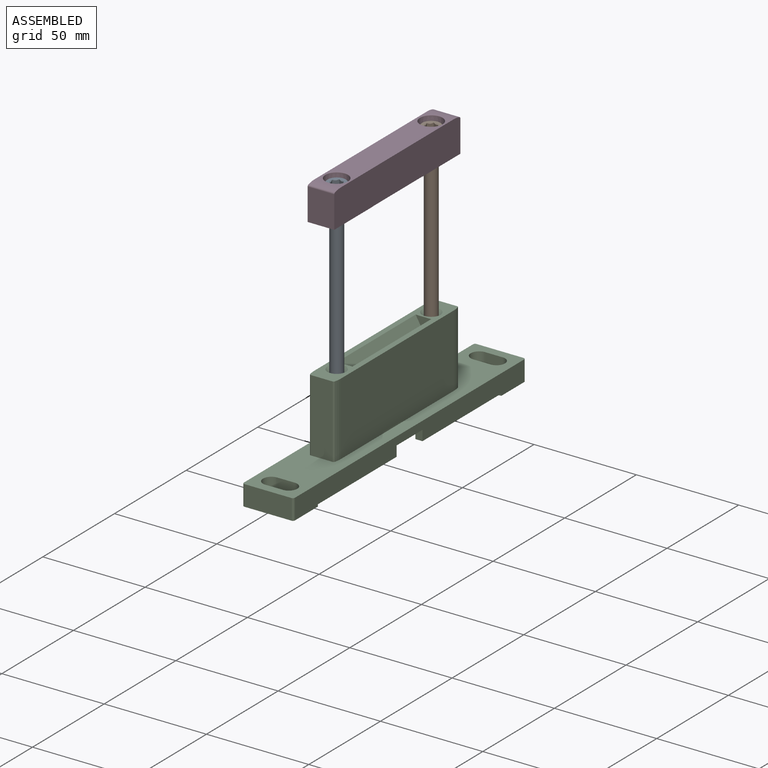
[diagram: assembled view]
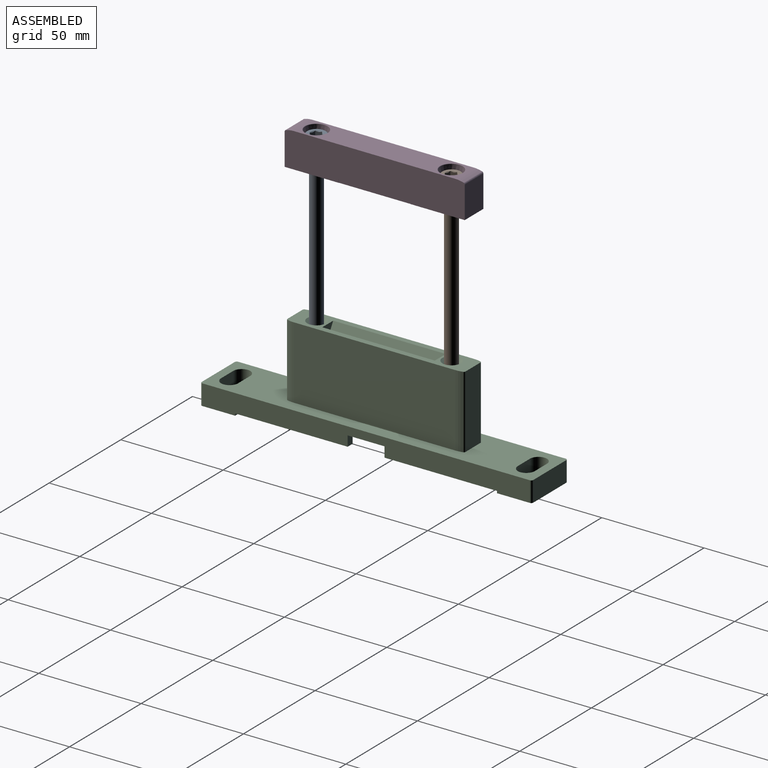
[diagram: assembled view, second angle]
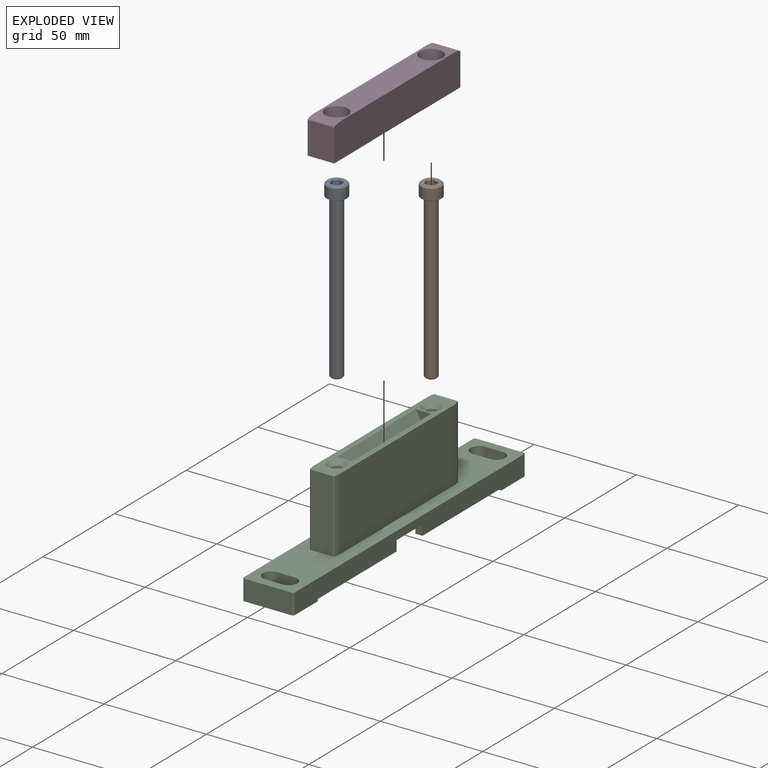
[diagram: exploded view]
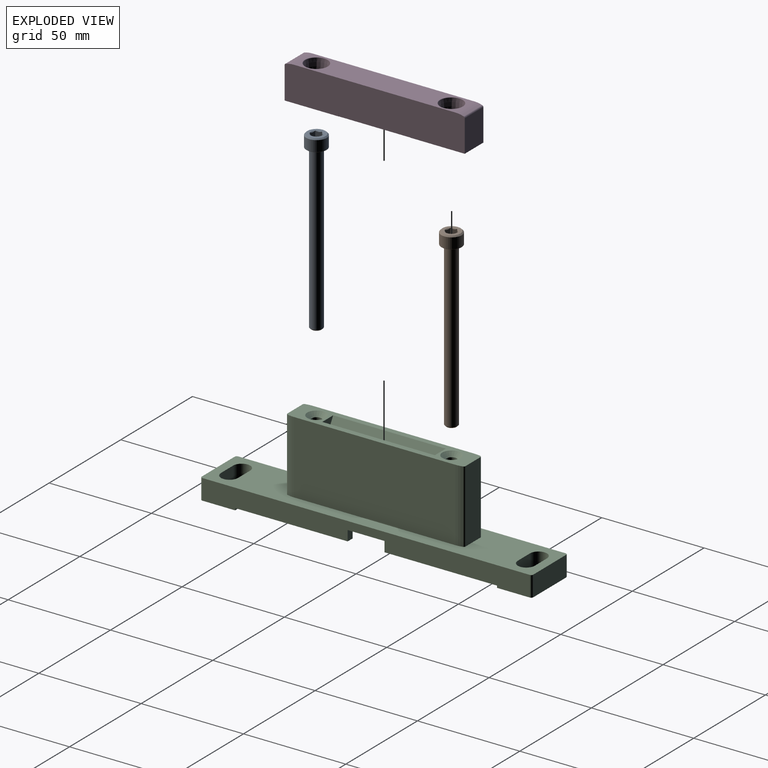
[diagram: exploded view, second angle]
ASSEMBLY  parts=4 mates=4
PART A: 28 faces, bbox 10x86x10 mm
  f0: plane 3x2.5mm, normal (0.5,0,0.87), area 7.9mm2, adj f1,f4,f14,f22,f23
  f1: plane 3x2.5mm, normal (-0.5,0,0.87), area 7.9mm2, adj f0,f2,f17,f20,f22
  f2: plane 3x2.89mm, normal (-1,0,0), area 7.9mm2, adj f1,f16,f20,f21,f26
  f3: plane 3x2.5mm, normal (0.5,0,-0.87), area 7.9mm2, adj f4,f19,f24,f25,f26
  f4: plane 3x2.89mm, normal (1,0,0), area 7.9mm2, adj f0,f3,f18,f23,f24
  f5: plane 4.77x4.77mm, normal (0,-1,0), area 17.9mm2, adj f6
  f6: cone r=3mm half-angle=45deg, axis (0,1,0), area 14.7mm2, adj f5,f7
  f7: cylinder r=3mm len=78.71mm, axis (0,1,0), area 1483.6mm2, adj f6,f8
  f8: cone r=3.05mm half-angle=4.2deg, axis (0,1,0), area 13mm2, adj f7,f9
  f9: plane 9.7x9.7mm, normal (0,-1,0), area 44.7mm2, adj f8,f10
  f10: cone r=5mm half-angle=45deg, axis (0,1,0), area 6.6mm2, adj f9,f11
  f11: cylinder r=5mm len=10mm, axis (0,1,0), area 164.9mm2, adj f10,f12
  f12: cone r=4.4mm half-angle=45deg, axis (0,-1,0), area 25.1mm2, adj f11,f13
  f13: plane 8.8x8.8mm, normal (0,1,0), area 34.6mm2, adj f12,f14,f15,f16,f17,f18,f19
  f14: cone r=2.5mm half-angle=45deg, axis (0,1,0), area 1.1mm2, adj f0,f13
  f15: cone r=2.5mm half-angle=45deg, axis (0,1,0), area 1.1mm2, adj f13,f26
  f16: cone r=2.5mm half-angle=45deg, axis (0,1,0), area 1.1mm2, adj f2,f13
  f17: cone r=2.5mm half-angle=45deg, axis (0,1,0), area 1.1mm2, adj f1,f13
  f18: cone r=2.5mm half-angle=45deg, axis (0,1,0), area 1.1mm2, adj f4,f13
  f19: cone r=2.5mm half-angle=45deg, axis (0,1,0), area 1.1mm2, adj f3,f13
  f20: plane 2.17x1.25mm, normal (0,1,0), area 0.3mm2, adj f1,f2,f27
  f21: plane 2.17x1.25mm, normal (0,1,0), area 0.3mm2, adj f2,f26,f27
  f22: plane 2.5x0.72mm, normal (0,1,0), area 0.3mm2, adj f0,f1,f27
  f23: plane 2.17x1.25mm, normal (0,1,0), area 0.3mm2, adj f0,f4,f27
  f24: plane 2.17x1.25mm, normal (0,1,0), area 0.3mm2, adj f3,f4,f27
  f25: plane 2.5x0.72mm, normal (0,1,0), area 0.3mm2, adj f3,f26,f27
  f26: plane 3x2.5mm, normal (-0.5,0,-0.87), area 7.9mm2, adj f2,f3,f15,f21,f25
  f27: cone r=866.03mm half-angle=60deg, axis (0,1,0), area 22.7mm2, adj f20,f21,f22,f23,f24,f25
PART B: same geometry as A
PART C: 113 faces, bbox 25x162x45.5 mm
  f0: plane 5x5mm, normal (0,0,1), area 0.6mm2, adj f5,f6
  f1: cylinder r=0.5mm len=55mm, axis (0,1,0), area 28.8mm2, adj f2,f3,f8,f110
  f2: plane 7.6x5mm, normal (0,-1,0), area 23.5mm2, adj f1,f3,f17,f110,f111,f112
  f3: plane 55x1.25mm, normal (0,0,1), area 68.7mm2, adj f1,f2,f8,f112
  f4: cylinder r=2.46mm len=5.96mm, axis (0,0,1), area 92mm2, adj f9,f11
  f5: cylinder r=2.46mm len=5.96mm, axis (0,0,1), area 92mm2, adj f0,f7
  f6: cone r=4.5mm half-angle=45deg, axis (0,0,1), area 62.2mm2, adj f0,f17
  f7: cone r=2.46mm half-angle=45deg, axis (0,0,-1), area 13.1mm2, adj f5,f56
  f8: plane 7.6x5mm, normal (0,1,0), area 23.5mm2, adj f1,f3,f17,f110,f111,f112
  f9: cone r=2.46mm half-angle=45deg, axis (0,0,-1), area 13.1mm2, adj f4,f12
  f10: cone r=4.5mm half-angle=45deg, axis (0,0,1), area 62.2mm2, adj f11,f17
  f11: plane 5x5mm, normal (0,0,1), area 0.6mm2, adj f4,f10
  f12: plane 9.5x8.5mm, normal (0,0,-1), area 52mm2, adj f9,f13,f14,f15,f16,f63,f75
  f13: plane 31x6.5mm, normal (0,1,0), area 201.5mm2, adj f12,f14,f15,f32
  f14: cylinder r=1mm len=31mm, axis (0,0,1), area 48.7mm2, adj f12,f13,f32,f63
  f15: cylinder r=1mm len=31mm, axis (0,0,1), area 48.7mm2, adj f12,f13,f16,f32
  f16: plane 76x31mm, normal (1,0,0), area 2212mm2, adj f12,f15,f32,f56,f57,f58,f59,f60
  f17: plane 87x13mm, normal (0,0,1), area 582.2mm2, adj f2,f6,f8,f10,f18,f19,f20,f21
  f18: cylinder r=0.8mm len=35.5mm, axis (0,0,1), area 37.1mm2, adj f17,f19,f29,f48
  f19: plane 35.5x10.55mm, normal (0,1,0), area 374.4mm2, adj f17,f18,f20,f48
  f20: cylinder r=0.8mm len=35.5mm, axis (0,0,1), area 37.1mm2, adj f17,f19,f21,f48
  f21: cylinder r=13mm len=35.5mm, axis (0,0,1), area 122.5mm2, adj f17,f20,f22,f48
  f22: plane 79x35.5mm, normal (1,0,0), area 2804.5mm2, adj f17,f21,f23,f48
  f23: cylinder r=13mm len=35.5mm, axis (0,0,1), area 122.5mm2, adj f17,f22,f24,f48
  f24: cylinder r=0.8mm len=35.5mm, axis (0,0,1), area 37.1mm2, adj f17,f23,f25,f48
  f25: plane 35.5x10.55mm, normal (0,-1,0), area 374.4mm2, adj f17,f24,f26,f48
  f26: cylinder r=0.8mm len=35.5mm, axis (0,0,1), area 37.1mm2, adj f17,f25,f27,f48
  f27: cylinder r=13mm len=35.5mm, axis (0,0,1), area 122.5mm2, adj f17,f26,f28,f48
  f28: plane 79x35.5mm, normal (-1,0,0), area 2804.5mm2, adj f17,f27,f29,f48
  f29: cylinder r=13mm len=35.5mm, axis (0,0,1), area 122.5mm2, adj f17,f18,f28,f48
  f30: plane 5x3.5mm, normal (0,-1,0), area 17.5mm2, adj f32,f40,f52,f55
  f31: plane 5x3.5mm, normal (0,1,0), area 17.5mm2, adj f32,f34,f40,f44
  f32: plane 128x25mm, normal (0,0,-1), area 1767.9mm2, adj f13,f14,f15,f16,f30,f31,f33,f34
  f33: plane 55x5mm, normal (-1,0,0), area 275mm2, adj f32,f45,f50,f54
  f34: plane 55x5mm, normal (1,0,0), area 275mm2, adj f31,f32,f44,f45
  f35: cylinder r=1mm len=10mm, axis (0,0,1), area 15.7mm2, adj f40,f41,f42,f48
  f36: cylinder r=1mm len=10mm, axis (0,0,1), area 15.7mm2, adj f39,f41,f42,f48
  f37: cylinder r=1mm len=10mm, axis (0,0,1), area 15.7mm2, adj f39,f46,f47,f48
  f38: cylinder r=1mm len=10mm, axis (0,0,1), area 15.7mm2, adj f40,f46,f47,f48
  f39: plane 160x10mm, normal (1,0,0), area 1382mm2, adj f32,f36,f37,f42,f43,f45,f46,f48
  f40: plane 160x10mm, normal (-1,0,0), area 1382mm2, adj f30,f31,f32,f35,f38,f42,f43,f44
  f41: plane 23x10mm, normal (0,1,0), area 230mm2, adj f35,f36,f42,f48
  f42: plane 25x17mm, normal (0,0,-1), area 299.9mm2, adj f35,f36,f39,f40,f41,f43,f67,f68
  f43: plane 25x6mm, normal (0,-1,0), area 115mm2, adj f32,f39,f40,f42,f51,f52,f53,f55
  f44: plane 55x3.5mm, normal (0,0,-1), area 192.5mm2, adj f31,f34,f40,f45
  f45: plane 25x6mm, normal (0,1,0), area 115mm2, adj f32,f33,f34,f39,f40,f44,f46,f54
  f46: plane 25x17mm, normal (0,0,-1), area 299.9mm2, adj f37,f38,f39,f40,f45,f47,f71,f72
  f47: plane 23x10mm, normal (0,-1,0), area 230mm2, adj f37,f38,f46,f48
  f48: plane 162x25mm, normal (0,0,1), area 2672.4mm2, adj f18,f19,f20,f21,f22,f23,f24,f25
  f49: plane 5x3.5mm, normal (0,-1,0), area 17.5mm2, adj f32,f39,f51,f53
  f50: plane 5x3.5mm, normal (0,1,0), area 17.5mm2, adj f32,f33,f39,f54
  f51: plane 55x5mm, normal (-1,0,0), area 275mm2, adj f32,f43,f49,f53
  f52: plane 55x5mm, normal (1,0,0), area 275mm2, adj f30,f32,f43,f55
  f53: plane 55x3.5mm, normal (0,0,-1), area 192.5mm2, adj f39,f43,f49,f51
  f54: plane 55x3.5mm, normal (0,0,-1), area 192.5mm2, adj f33,f39,f45,f50
  f55: plane 55x3.5mm, normal (0,0,-1), area 192.5mm2, adj f30,f40,f43,f52
  f56: plane 9.5x8.5mm, normal (0,0,-1), area 52mm2, adj f7,f16,f63,f64,f65,f66,f109
  f57: plane 8.5x6mm, normal (0,0,-1), area 51mm2, adj f16,f63,f104,f105
  f58: plane 8.5x6.5mm, normal (0,0,-1), area 55.2mm2, adj f16,f63,f99,f100
  f59: plane 8.5x6.5mm, normal (0,0,-1), area 55.2mm2, adj f16,f63,f94,f95
  f60: plane 8.5x6.5mm, normal (0,0,-1), area 55.2mm2, adj f16,f63,f89,f90
  f61: plane 8.5x6.5mm, normal (0,0,-1), area 55.3mm2, adj f16,f63,f84,f85
  f62: plane 8.5x6mm, normal (0,0,-1), area 51mm2, adj f16,f63,f79,f80
  f63: plane 76x31mm, normal (-1,0,0), area 2212mm2, adj f12,f14,f32,f56,f57,f58,f59,f60
  f64: cylinder r=1mm len=31mm, axis (0,0,1), area 48.7mm2, adj f32,f56,f63,f65
  f65: plane 31x6.5mm, normal (0,-1,0), area 201.5mm2, adj f32,f56,f64,f66
  f66: cylinder r=1mm len=31mm, axis (0,0,1), area 48.7mm2, adj f16,f32,f56,f65
  f67: plane 10x8.5mm, normal (0,-1,0), area 85mm2, adj f42,f48,f68,f70
  f68: cylinder r=4.15mm len=10mm, axis (0,0,1), area 130.4mm2, adj f42,f48,f67,f69
  f69: plane 10x8.5mm, normal (0,1,0), area 85mm2, adj f42,f48,f68,f70
  f70: cylinder r=4.15mm len=10mm, axis (0,0,1), area 130.4mm2, adj f42,f48,f67,f69
  f71: plane 10x8.5mm, normal (0,-1,0), area 85mm2, adj f46,f48,f72,f74
  f72: cylinder r=4.15mm len=10mm, axis (0,0,1), area 130.4mm2, adj f46,f48,f71,f73
  f73: plane 10x8.5mm, normal (0,1,0), area 85mm2, adj f46,f48,f72,f74
  f74: cylinder r=4.15mm len=10mm, axis (0,0,1), area 130.4mm2, adj f46,f48,f71,f73
  f75: plane 8.5x6mm, normal (0,-1,0), area 51mm2, adj f12,f16,f63,f76
  f76: cylinder r=1mm len=8.5mm, axis (1,0,0), area 13.4mm2, adj f16,f63,f75,f77
  f77: plane 8.5x1mm, normal (0,0,-1), area 8.5mm2, adj f16,f63,f76,f78
  f78: cylinder r=1mm len=8.5mm, axis (1,0,0), area 13.4mm2, adj f16,f63,f77,f79
  f79: plane 8.5x6mm, normal (0,1,0), area 51mm2, adj f16,f62,f63,f78
  f80: plane 8.5x6mm, normal (0,-1,0), area 51mm2, adj f16,f62,f63,f81
  f81: cylinder r=1mm len=8.5mm, axis (1,0,0), area 13.4mm2, adj f16,f63,f80,f82
  f82: plane 8.5x1mm, normal (0,0,-1), area 8.5mm2, adj f16,f63,f81,f83
  f83: cylinder r=1mm len=8.5mm, axis (1,0,0), area 13.4mm2, adj f16,f63,f82,f84
  f84: plane 8.5x6mm, normal (0,1,0), area 51mm2, adj f16,f61,f63,f83
  f85: plane 8.5x6mm, normal (0,-1,0), area 51mm2, adj f16,f61,f63,f86
  f86: cylinder r=1mm len=8.5mm, axis (1,0,0), area 13.4mm2, adj f16,f63,f85,f87
  f87: plane 8.5x1mm, normal (0,0,-1), area 8.5mm2, adj f16,f63,f86,f88
  f88: cylinder r=1mm len=8.5mm, axis (1,0,0), area 13.4mm2, adj f16,f63,f87,f89
  f89: plane 8.5x6mm, normal (0,1,0), area 51mm2, adj f16,f60,f63,f88
  f90: plane 8.5x6mm, normal (0,-1,0), area 51mm2, adj f16,f60,f63,f91
  f91: cylinder r=1mm len=8.5mm, axis (1,0,0), area 13.4mm2, adj f16,f63,f90,f92
  f92: plane 8.5x1mm, normal (0,0,-1), area 8.5mm2, adj f16,f63,f91,f93
  f93: cylinder r=1mm len=8.5mm, axis (1,0,0), area 13.4mm2, adj f16,f63,f92,f94
  f94: plane 8.5x6mm, normal (0,1,0), area 51mm2, adj f16,f59,f63,f93
  f95: plane 8.5x6mm, normal (0,-1,0), area 51mm2, adj f16,f59,f63,f96
  f96: cylinder r=1mm len=8.5mm, axis (1,0,0), area 13.4mm2, adj f16,f63,f95,f97
  f97: plane 8.5x1mm, normal (0,0,-1), area 8.5mm2, adj f16,f63,f96,f98
  f98: cylinder r=1mm len=8.5mm, axis (1,0,0), area 13.4mm2, adj f16,f63,f97,f99
  f99: plane 8.5x6mm, normal (0,1,0), area 51mm2, adj f16,f58,f63,f98
  f100: plane 8.5x6mm, normal (0,-1,0), area 51mm2, adj f16,f58,f63,f101
  f101: cylinder r=1mm len=8.5mm, axis (1,0,0), area 13.4mm2, adj f16,f63,f100,f102
  f102: plane 8.5x1mm, normal (0,0,-1), area 8.5mm2, adj f16,f63,f101,f103
  f103: cylinder r=1mm len=8.5mm, axis (1,0,0), area 13.4mm2, adj f16,f63,f102,f104
  f104: plane 8.5x6mm, normal (0,1,0), area 51mm2, adj f16,f57,f63,f103
  f105: plane 8.5x6mm, normal (0,-1,0), area 51mm2, adj f16,f57,f63,f106
  f106: cylinder r=1mm len=8.5mm, axis (1,0,0), area 13.4mm2, adj f16,f63,f105,f107
  f107: plane 8.5x1mm, normal (0,0,-1), area 8.5mm2, adj f16,f63,f106,f108
  f108: cylinder r=1mm len=8.5mm, axis (1,0,0), area 13.4mm2, adj f16,f63,f107,f109
  f109: plane 8.5x6mm, normal (0,1,0), area 51mm2, adj f16,f56,f63,f108
  f110: plane 55x4.75mm, normal (0.87,0,0.5), area 301.7mm2, adj f1,f2,f8,f17
  f111: plane 55x4.75mm, normal (-0.87,0,0.5), area 301.7mm2, adj f2,f8,f17,f112
  f112: cylinder r=0.5mm len=55mm, axis (0,1,0), area 28.8mm2, adj f2,f3,f8,f111
PART D: 49 faces, bbox 13x88x17 mm
  f0: cylinder r=0.5mm len=4mm, axis (0,1,0), area 2.1mm2, adj f1,f42,f43,f45,f47,f48
  f1: plane 55x4.75mm, normal (0.87,0,-0.5), area 207.1mm2, adj f0,f3,f4,f12,f13,f14,f24,f46
  f2: plane 25.5x4mm, normal (0,0,-1), area 101.2mm2, adj f3,f4,f5,f6,f7,f43,f46,f47
  f3: cylinder r=0.9mm len=9.88mm, axis (0,0,1), area 13.2mm2, adj f1,f2,f4,f46
  f4: plane 13x7.6mm, normal (0,-1,0), area 41.2mm2, adj f1,f2,f3,f5,f24,f29
  f5: cylinder r=0.9mm len=9.88mm, axis (0,0,1), area 13.2mm2, adj f2,f4,f6,f29
  f6: plane 23.6x9.88mm, normal (-1,0,0), area 233.2mm2, adj f2,f5,f7,f29
  f7: cylinder r=1mm len=9.88mm, axis (0,0,1), area 14.5mm2, adj f2,f6,f8,f29,f43
  f8: cylinder r=0.5mm len=4mm, axis (0,1,0), area 2.1mm2, adj f7,f9,f29,f42,f43,f45
  f9: cylinder r=1mm len=9.88mm, axis (0,0,1), area 14.5mm2, adj f8,f10,f29,f44,f45
  f10: plane 23.6x9.88mm, normal (-1,0,0), area 233.2mm2, adj f9,f11,f29,f44
  f11: cylinder r=0.9mm len=9.88mm, axis (0,0,1), area 13.2mm2, adj f10,f12,f29,f44
  f12: plane 13x7.6mm, normal (0,1,0), area 41.2mm2, adj f1,f11,f13,f24,f29,f44
  f13: cylinder r=0.9mm len=9.88mm, axis (0,0,1), area 13.2mm2, adj f1,f12,f14,f44
  f14: plane 23.6x9.88mm, normal (1,0,0), area 233.2mm2, adj f1,f13,f44,f48
  f15: plane 35x1.5mm, normal (1,0,0), area 52.5mm2, adj f16,f17,f18,f24
  f16: plane 1.5x0.1mm, normal (0,-1,0), area 0.1mm2, adj f15,f18,f19,f24
  f17: plane 1.5x0.1mm, normal (0,1,0), area 0.1mm2, adj f15,f18,f19,f24
  f18: plane 35x0.1mm, normal (0,0,-1), area 3.5mm2, adj f15,f16,f17,f19
  f19: plane 88x17mm, normal (1,0,0), area 1441mm2, adj f16,f17,f18,f21,f22,f23,f24,f25
  f20: plane 88x17mm, normal (-1,0,0), area 1493.5mm2, adj f21,f22,f23,f24,f25,f26,f27,f28
  f21: cylinder r=13mm len=13mm, axis (1,0,0), area 52.1mm2, adj f19,f20,f22,f28
  f22: cylinder r=0.8mm len=13mm, axis (1,0,0), area 13.1mm2, adj f19,f20,f21,f23
  f23: plane 15.63x13mm, normal (0,1,0), area 203.1mm2, adj f19,f20,f22,f24
  f24: plane 88x13mm, normal (0,0,-1), area 656.1mm2, adj f1,f4,f12,f15,f16,f17,f19,f20
  f25: plane 15.63x13mm, normal (0,-1,0), area 203.1mm2, adj f19,f20,f24,f26
  f26: cylinder r=0.8mm len=13mm, axis (1,0,0), area 13.1mm2, adj f19,f20,f25,f27
  f27: cylinder r=13mm len=13mm, axis (1,0,0), area 52.1mm2, adj f19,f20,f26,f28
  f28: plane 79x13mm, normal (0,0,1), area 823.3mm2, adj f19,f20,f21,f27,f30,f36
  f29: plane 55x4.75mm, normal (-0.87,0,-0.5), area 207.1mm2, adj f4,f5,f6,f7,f8,f9,f10,f11
  f30: torus R=5.69mm, axis (0,0,-1), area 10.7mm2, adj f28,f31
  f31: cone r=5.49mm half-angle=2deg, axis (0,0,1), area 190.4mm2, adj f30,f32
  f32: torus R=5.1mm, axis (0,0,-1), area 10.1mm2, adj f31,f33
  f33: plane 10.19x10.19mm, normal (0,0,1), area 40.9mm2, adj f32,f34
  f34: cone r=3.6mm half-angle=45deg, axis (0,0,1), area 10.7mm2, adj f33,f35
  f35: cylinder r=3.25mm len=10.65mm, axis (0,0,1), area 217.5mm2, adj f24,f34
  f36: torus R=5.69mm, axis (0,0,-1), area 10.7mm2, adj f28,f37
  f37: cone r=5.49mm half-angle=2deg, axis (0,0,1), area 190.4mm2, adj f36,f38
  f38: torus R=5.1mm, axis (0,0,-1), area 10.1mm2, adj f37,f39
  f39: plane 10.19x10.19mm, normal (0,0,1), area 40.9mm2, adj f38,f40
  f40: cone r=3.6mm half-angle=45deg, axis (0,0,1), area 10.7mm2, adj f39,f41
  f41: cylinder r=3.25mm len=10.65mm, axis (0,0,1), area 217.5mm2, adj f24,f40
  f42: plane 4x1.25mm, normal (0,0,-1), area 5mm2, adj f0,f8,f43,f45
  f43: plane 8.17x2mm, normal (0,1,0), area 16mm2, adj f0,f2,f7,f8,f42,f47
  f44: plane 25.5x4mm, normal (0,0,-1), area 101.2mm2, adj f9,f10,f11,f12,f13,f14,f45,f48
  f45: plane 8.17x2mm, normal (0,-1,0), area 16mm2, adj f0,f8,f9,f42,f44,f48
  f46: plane 23.6x9.88mm, normal (1,0,0), area 233.2mm2, adj f1,f2,f3,f47
  f47: cylinder r=1mm len=9.88mm, axis (0,0,1), area 14.5mm2, adj f0,f1,f2,f43,f46
  f48: cylinder r=1mm len=9.88mm, axis (0,0,1), area 14.5mm2, adj f0,f1,f14,f44,f45
PLACE A rot(axis=(0.98,0.13,0.13),90.9deg) t=(-64.65,-59.58,167.22)mm
PLACE B rot(axis=(0.98,0.13,0.13),90.9deg) t=(-64.65,6.42,167.03)mm
PLACE C t=(-64.65,-26.58,45.09)mm fixed
PLACE D rot(axis=(0,0,1),0deg) t=(-64.65,-26.58,158.06)mm
MATE cylindrical A.f6 <-> C.f4  axis (0,0,1) through (-64.65,-59.58,127.19)mm
MATE cylindrical B.f6 <-> D.f36  axis (0,0,1) through (-64.65,6.42,127)mm
MATE cylindrical A.f6 <-> D.f30  axis (0,0,1) through (-64.65,-59.58,127.19)mm
MATE cylindrical B.f6 <-> C.f5  axis (0,0,1) through (-64.65,6.42,127)mm
